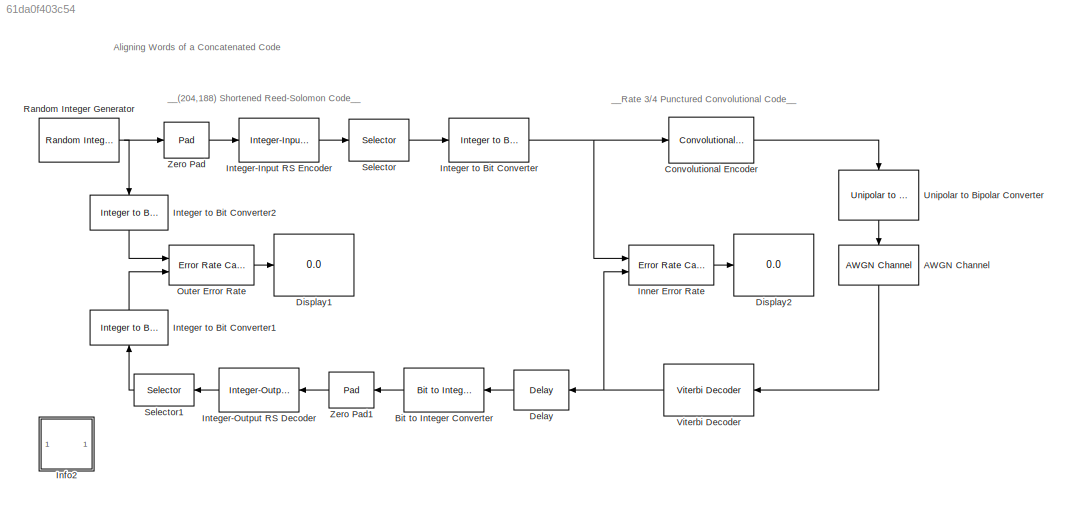
MODEL slx_61da0f403c54
KIND model
BLOCK [Reference] AWGN Channel  REF=commchan3/AWGN
Channel
  EbNodB = 10
  EsNodB = EbNodB+10*log10(log2(M))
  InputProcessing = Columns as channels (frame based)
  Ports = [1, 1]
  Ps = 1
  SNRdB = 5
  SourceBlock = commchan3/AWGN\nChannel
  SourceType = AWGN Channel
  Tsym = Tsym
  UserDataPersistent = on
  bitsPerSym = 1
  noiseMode = Signal to noise ratio  (SNR)
  seed = 68521
  variance = 10^(-0.1*15)/(2048*2)
BLOCK [Reference] Bit to Integer Converter  REF=commutil2/Bit to Integer
Converter
  Ports = [1, 1]
  SourceBlock = commutil2/Bit to Integer\nConverter
  SourceType = Bit to Integer Converter
  bitOrder = MSB first
  nbits = 8
  outDtype = Inherit via internal rule
  outDtypeSigned = Inherit via internal rule
  signedOutputValues = Unsigned
BLOCK [Reference] Convolutional Encoder  REF=commcnvcod2/Convolutional
Encoder
  DelayedResetAction = off
  Ports = [1, 1]
  SourceBlock = commcnvcod2/Convolutional\nEncoder
  SourceType = Convolutional Encoder
  hasFinStPort = off
  hasIniStPort = off
  opMode = Continuous
  punctureVector = [1 1 0 1 1 0]'
  reset = Unused parameter value
  trellis = poly2trellis(7, [171 133])
  usePuncVector = on
BLOCK [Reference] Delay  REF=dspsigops/Delay
  InputProcessing = Columns as channels (frame based)
  Ports = [1, 1]
  SourceBlock = dspsigops/Delay
  SourceType = Delay
  UserDataPersistent = on
  delay = 1632-136
  dif_ic_for_ch = off
  dif_ic_for_dly = off
  dly_unit = Samples
  ic = 0
  ic_detail = off
  reset_popup = None
BLOCK [Display] Display1
  Decimation = 1
  Ports = [1]
BLOCK [Display] Display2
  Decimation = 1
  Ports = [1]
BLOCK [SubSystem] Info2
  AncestorBlock = commblksprivate/Info
  OpenFcn = helpview([docroot '/toolbox/comm/comm.map'], 'doc_concat')
  Ports = []
  RequestExecContextInheritance = off
BLOCK [Reference] Inner Error Rate  REF=commsink2/Error Rate
Calculation
  N = 136
  PMode = Port
  Ports = [2, 1]
  RsMode2 = off
  SourceBlock = commsink2/Error Rate\nCalculation
  SourceType = Error Rate Calculation
  WsName = ErrorVec
  cp_mode = Entire frame
  maxBits = 1e6
  numErr = 100
  st_delay = 0
  stop = on
  subframe = []
BLOCK [Reference] Integer to Bit Converter  REF=commutil2/Integer to Bit
Converter
  Ports = [1, 1]
  SourceBlock = commutil2/Integer to Bit\nConverter
  SourceType = Integer to Bit Converter
  bitOrder = MSB first
  nbits = 8
  outDtype = Inherit via internal rule
  signedInputValues = Unsigned
BLOCK [Reference] Integer to Bit Converter1  REF=commutil2/Integer to Bit
Converter
  Ports = [1, 1]
  SourceBlock = commutil2/Integer to Bit\nConverter
  SourceType = Integer to Bit Converter
  bitOrder = MSB first
  nbits = 8
  outDtype = Inherit via internal rule
  signedInputValues = Unsigned
BLOCK [Reference] Integer to Bit Converter2  REF=commutil2/Integer to Bit
Converter
  Ports = [1, 1]
  SourceBlock = commutil2/Integer to Bit\nConverter
  SourceType = Integer to Bit Converter
  bitOrder = MSB first
  nbits = 8
  outDtype = Inherit via internal rule
  signedInputValues = Unsigned
BLOCK [Reference] Integer-Input RS Encoder  REF=commblkcod2/Integer-Input
RS Encoder
  Ports = [1, 1]
  SourceBlock = commblkcod2/Integer-Input\nRS Encoder
  SourceType = Integer-Input RS Encoder
  genPoly = rsgenpoly(7,3)
  k = 239
  n = 255
  prPoly = [1 0 1 1]
  punctVec = [ones(2,1); zeros(2,1)]
  specGenPoly = off
  specPrimPoly = off
  specPuncture = off
BLOCK [Reference] Integer-Output RS Decoder  REF=commblkcod2/Integer-Output
RS Decoder
  Ports = [1, 1]
  SourceBlock = commblkcod2/Integer-Output\nRS Decoder
  SourceType = Integer-Output RS Decoder
  genPoly = rsgenpoly(7,3)
  k = 239
  n = 255
  prPoly = [1 0 1 1]
  punctVec = [ones(2,1); zeros(2,1)]
  showNumErr = off
  specErasurePort = off
  specGenPoly = off
  specPrimPoly = off
  specPuncture = off
BLOCK [Reference] Outer Error Rate  REF=commsink2/Error Rate
Calculation
  N = 188*8
  PMode = Port
  Ports = [2, 1]
  RsMode2 = off
  SourceBlock = commsink2/Error Rate\nCalculation
  SourceType = Error Rate Calculation
  WsName = ErrorVec
  cp_mode = Entire frame
  maxBits = 1e6
  numErr = 100
  st_delay = 0
  stop = off
  subframe = []
BLOCK [Reference] Random Integer Generator  REF=commrandsrc2/Random Integer
Generator
  Ports = [0, 1]
  SourceBlock = commrandsrc2/Random Integer\nGenerator
  SourceType = Random Integer Generator
  Ts = 1
  frameBased = on
  mul = 256
  orient = off
  outDataType = double
  sampPerFrame = 188
  seed = 56479
BLOCK [Selector] Selector
  Indices = [1:204]
  InputPortWidth = 255
  Ports = [1, 1]
BLOCK [Selector] Selector1
  Indices = [1:188]
  InputPortWidth = 239
  Ports = [1, 1]
BLOCK [Reference] Unipolar to Bipolar Converter  REF=commutil2/Unipolar to
Bipolar
Converter
  M = 2
  Ports = [1, 1]
  SourceBlock = commutil2/Unipolar to\nBipolar\nConverter
  SourceType = Unipolar to Bipolar Converter
  dataType = Inherit via internal rule
  polarity = Negative
BLOCK [Reference] Viterbi Decoder  REF=commcnvcod2/Viterbi Decoder
  Ports = [1, 1]
  SourceBlock = commcnvcod2/Viterbi Decoder
  SourceType = Viterbi Decoder
  dectype = Unquantized
  delayedResetAction = off
  erasures = off
  isPunctured = on
  nsdecb = 4
  opmode = Continuous
  outDataType = double
  punctureVector = [1 1 0 1 1 0]'
  reset = off
  runSigValErrCheck = off
  smWordLength = 16
  tbdepth = 136
  trellis = poly2trellis(7, [171 133])
BLOCK [Reference] Zero Pad  REF=dspsigops/Pad
  LockScale = off
  Ports = [1, 1]
  SourceBlock = dspsigops/Pad
  SourceType = Pad
  accumFracLength = 0
  accumMode = Same as input
  accumWordLength = 0
  dimsToPad = 1
  isVarDimsMode = off
  numOutCols = 1
  numOutRows = 239
  outSize = 1
  outSizeMode = User-specified
  outputFracLength = 0
  outputMode = Same as input
  outputWordLength = 0
  overflowMode = off
  padAlong = Columns
  padBeginning = 0
  padEnd = 0
  padNumOutColsSpecMethod = User-specified
  padNumOutRowsSpecMethod = User-specified
  padSigAt = End
  padVal = 0
  roundingMode = Floor
  spec = Output size
  truncOrWrapMode = Truncate
  trunc_flag = None
  valSrc = Specify via dialog
  wrap_flag = None
BLOCK [Reference] Zero Pad1  REF=dspsigops/Pad
  LockScale = off
  Ports = [1, 1]
  SourceBlock = dspsigops/Pad
  SourceType = Pad
  accumFracLength = 0
  accumMode = Same as input
  accumWordLength = 0
  dimsToPad = 1
  isVarDimsMode = off
  numOutCols = 1
  numOutRows = 255
  outSize = 1
  outSizeMode = User-specified
  outputFracLength = 0
  outputMode = Same as input
  outputWordLength = 0
  overflowMode = off
  padAlong = Columns
  padBeginning = 0
  padEnd = 0
  padNumOutColsSpecMethod = User-specified
  padNumOutRowsSpecMethod = User-specified
  padSigAt = End
  padVal = 0
  roundingMode = Floor
  spec = Output size
  truncOrWrapMode = Truncate
  trunc_flag = None
  valSrc = Specify via dialog
  wrap_flag = None
ANNOTATION (root): Aligning Words of a Concatenated Code
ANNOTATION (root): __(204,188) Shortened Reed-Solomon Code__
ANNOTATION (root): __Rate 3/4 Punctured Convolutional Code__
LINE AWGN Channel:1 -> Viterbi Decoder:1
LINE Bit to Integer Converter:1 -> Zero Pad1:1
LINE Convolutional Encoder:1 -> Unipolar to Bipolar Converter:1
LINE Delay:1 -> Bit to Integer Converter:1
LINE Inner Error Rate:1 -> Display2:1
LINE Integer to Bit Converter1:1 -> Outer Error Rate:2
LINE Integer to Bit Converter2:1 -> Outer Error Rate:1
NET Integer to Bit Converter:1 -> Convolutional Encoder:1, Inner Error Rate:1
LINE Integer-Input RS Encoder:1 -> Selector:1
LINE Integer-Output RS Decoder:1 -> Selector1:1
LINE Outer Error Rate:1 -> Display1:1
NET Random Integer Generator:1 -> Integer to Bit Converter2:1, Zero Pad:1
LINE Selector1:1 -> Integer to Bit Converter1:1
LINE Selector:1 -> Integer to Bit Converter:1
LINE Unipolar to Bipolar Converter:1 -> AWGN Channel:1
NET Viterbi Decoder:1 -> Delay:1, Inner Error Rate:2
LINE Zero Pad1:1 -> Integer-Output RS Decoder:1
LINE Zero Pad:1 -> Integer-Input RS Encoder:1
note: NET lines group one-source signal fan-out (src -> all destinations, sorted); 1:1 wires keep LINE
